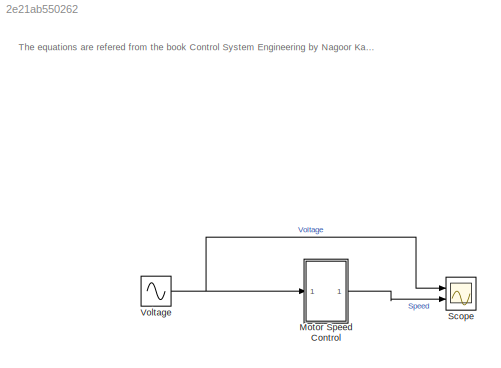
MODEL slx_2e21ab550262
KIND model
CONFIG AbsTol = auto
CONFIG EnableMultiTasking = off
CONFIG FixedStep = auto
CONFIG MaxStep = auto
CONFIG MinStep = auto
CONFIG PostLoadFcn = J=0.01;\nR=1;\nL=0.5;\nb=0.1;\nKe=0.01;\nKt=0.01;
CONFIG RelTol = 1e-3
CONFIG SampleTimeConstraint = Unconstrained
CONFIG SolverName = VariableStepAuto
CONFIG StartTime = 0.0
CONFIG StopTime = 10.0
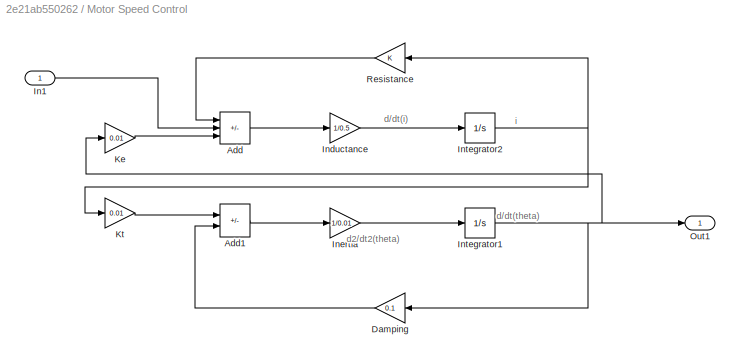
BLOCK [SubSystem] Motor Speed Control
  Ports = [1, 1]
  RequestExecContextInheritance = off
BLOCK [Sum] Motor Speed Control/Add
  IconShape = rectangular
  Inputs = -+-
  Ports = [3, 1]
BLOCK [Sum] Motor Speed Control/Add1
  IconShape = rectangular
  Inputs = +-
  Ports = [2, 1]
BLOCK [Gain] Motor Speed Control/Damping
  Gain = 0.1
BLOCK [Inport] Motor Speed Control/In1
BLOCK [Gain] Motor Speed Control/Inductance
  Gain = 1/0.5
BLOCK [Gain] Motor Speed Control/Inertia
  Gain = 1/0.01
BLOCK [Integrator] Motor Speed Control/Integrator1
  Ports = [1, 1]
BLOCK [Integrator] Motor Speed Control/Integrator2
  Ports = [1, 1]
BLOCK [Gain] Motor Speed Control/Ke
  Gain = 0.01
BLOCK [Gain] Motor Speed Control/Kt
  Gain = 0.01
BLOCK [Outport] Motor Speed Control/Out1
BLOCK [Gain] Motor Speed Control/Resistance
BLOCK [Scope] Scope
  Floating = off
  NumInputPorts = 2
  Ports = [2]
  ScopeSpecificationString = Simulink.scopes.TimeScopeBlockCfg('CurrentConfiguration', extmgr.ConfigurationSet(extmgr.Configuration('Core','General UI',true),extmgr.Configuration('Core','Source UI',true),extmgr.Configuration('Sources','WiredSimulink',true),extmgr.Configuration('Visuals','Time Domain',true,'SerializedDisplays',{struct('MinYLimReal','-0.55434','MaxYLimReal','0.55915','YLabelReal','','MinYLimMag','0.00000','MaxY...<+1983ch>
BLOCK [Sin] Voltage
  Amplitude = 5
  Ports = [0, 1]
  SampleTime = 0
ANNOTATION (root): The equations are refered from the book Control System Engineering by Nagoor Kani
ANNOTATION Motor Speed Control: d/dt(i)
ANNOTATION Motor Speed Control: d/dt(theta)
ANNOTATION Motor Speed Control: d2/dt2(theta)
ANNOTATION Motor Speed Control: i
LINE Motor Speed Control/Add1:1 -> Motor Speed Control/Inertia:1
LINE Motor Speed Control/Add:1 -> Motor Speed Control/Inductance:1
LINE Motor Speed Control/Damping:1 -> Motor Speed Control/Add1:2
LINE Motor Speed Control/In1:1 -> Motor Speed Control/Add:2
LINE Motor Speed Control/Inductance:1 -> Motor Speed Control/Integrator2:1
LINE Motor Speed Control/Inertia:1 -> Motor Speed Control/Integrator1:1
NET Motor Speed Control/Integrator1:1 -> Motor Speed Control/Damping:1, Motor Speed Control/Ke:1, Motor Speed Control/Out1:1
NET Motor Speed Control/Integrator2:1 -> Motor Speed Control/Kt:1, Motor Speed Control/Resistance:1
LINE Motor Speed Control/Ke:1 -> Motor Speed Control/Add:3
LINE Motor Speed Control/Kt:1 -> Motor Speed Control/Add1:1
LINE Motor Speed Control/Resistance:1 -> Motor Speed Control/Add:1
LINE Motor Speed Control:1 -> Scope:2
NET Voltage:1 -> Motor Speed Control:1, Scope:1
note: NET lines group one-source signal fan-out (src -> all destinations, sorted); 1:1 wires keep LINE
